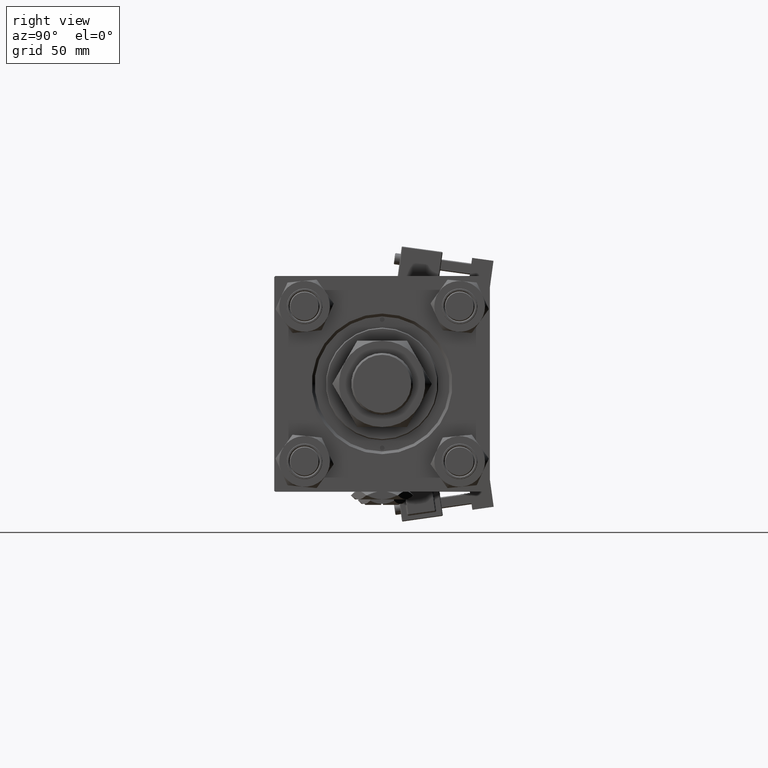
[diagram: clean part render]
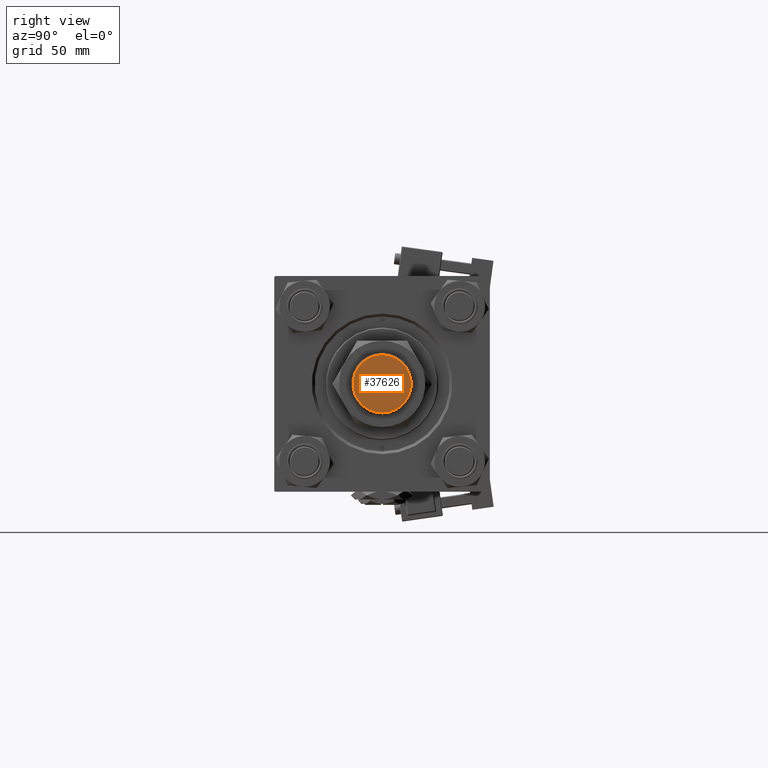
[diagram: same view with one face highlighted and labeled with its STEP entity id]
A machine part, right view. The second image highlights one B-rep face of the part: STEP entity #37626.
In plain terms, the highlighted planar face has unit normal (1, 0, -0).
Its self-contained STEP definition (entity closure, byte-faithful):
#3079 = CARTESIAN_POINT ( 'NONE',  ( 15.50000000000001421, 1.959434878635766315E-15, 73.00000000000000000 ) ) ;
#3714 = DIRECTION ( 'NONE',  ( 1.000000000000000000, 0.000000000000000000, -0.000000000000000000 ) ) ;
#7992 = CARTESIAN_POINT ( 'NONE',  ( 0.000000000000000000, 0.000000000000000000, 73.00000000000000000 ) ) ;
#8562 = AXIS2_PLACEMENT_3D ( 'NONE', #7992, #24804, #3714 ) ;
#11007 = CARTESIAN_POINT ( 'NONE',  ( 0.000000000000000000, 0.000000000000000000, 73.00000000000000000 ) ) ;
#16946 = DIRECTION ( 'NONE',  ( 1.000000000000000000, 0.000000000000000000, 0.000000000000000000 ) ) ;
#18758 = CIRCLE ( 'NONE', #21470, 15.50000000000001421 ) ;
#20789 = AXIS2_PLACEMENT_3D ( 'NONE', #11007, #28954, #45174 ) ;
#21470 = AXIS2_PLACEMENT_3D ( 'NONE', #38873, #52222, #16946 ) ;
#22598 = CIRCLE ( 'NONE', #20789, 15.50000000000001421 ) ;
#24804 = DIRECTION ( 'NONE',  ( 0.000000000000000000, 0.000000000000000000, 1.000000000000000000 ) ) ;
#25105 = ORIENTED_EDGE ( 'NONE', *, *, #53651, .T. ) ;
#28954 = DIRECTION ( 'NONE',  ( 0.000000000000000000, 0.000000000000000000, 1.000000000000000000 ) ) ;
#33904 = FACE_OUTER_BOUND ( 'NONE', #43361, .T. ) ;
#37626 = ADVANCED_FACE ( 'NONE', ( #33904 ), #39022, .T. ) ;
#38873 = CARTESIAN_POINT ( 'NONE',  ( 0.000000000000000000, 0.000000000000000000, 73.00000000000000000 ) ) ;
#39022 = PLANE ( 'NONE',  #8562 ) ;
#43361 = EDGE_LOOP ( 'NONE', ( #25105, #47425 ) ) ;
#45174 = DIRECTION ( 'NONE',  ( 1.000000000000000000, 0.000000000000000000, 0.000000000000000000 ) ) ;
#45735 = EDGE_CURVE ( 'NONE', #50406, #49971, #18758, .T. ) ;
#47425 = ORIENTED_EDGE ( 'NONE', *, *, #45735, .T. ) ;
#47670 = CARTESIAN_POINT ( 'NONE',  ( -15.50000000000001421, 0.000000000000000000, 73.00000000000000000 ) ) ;
#49971 = VERTEX_POINT ( 'NONE', #47670 ) ;
#50406 = VERTEX_POINT ( 'NONE', #3079 ) ;
#52222 = DIRECTION ( 'NONE',  ( 0.000000000000000000, 0.000000000000000000, 1.000000000000000000 ) ) ;
#53651 = EDGE_CURVE ( 'NONE', #49971, #50406, #22598, .T. ) ;